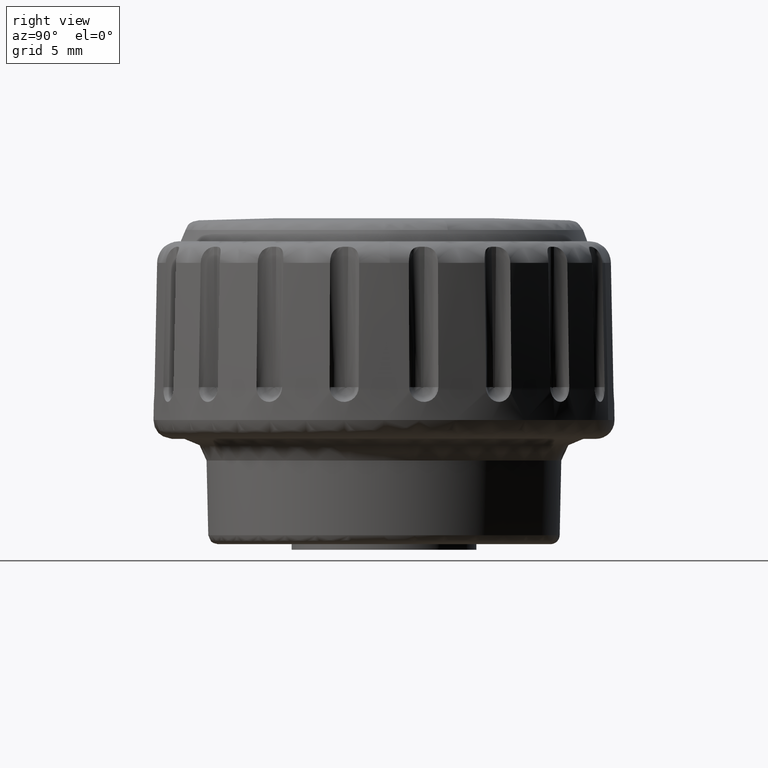
[diagram: clean part render]
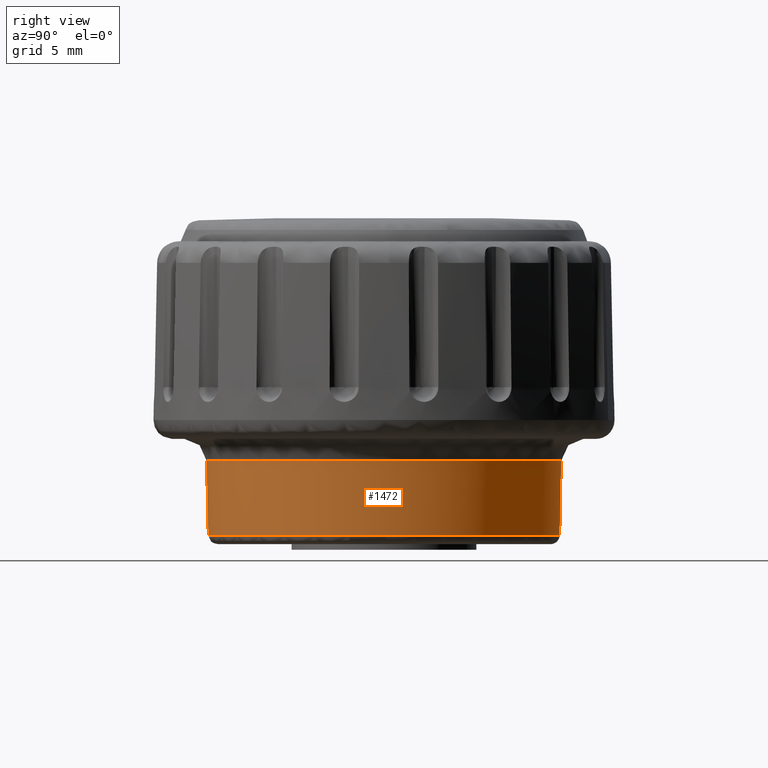
[diagram: same view with one face highlighted and labeled with its STEP entity id]
A machine part, right view. The second image highlights one B-rep face of the part: STEP entity #1472.
In plain terms, the highlighted face is a freeform B-spline surface patch.
Its self-contained STEP definition (entity closure, byte-faithful):
#1300=CARTESIAN_POINT('',(-7.191511458358566,-6.222806550559621,0.684042368976148));
#1301=CARTESIAN_POINT('',(-6.831050229601700,-6.639380814251923,0.684042368976147));
#1302=CARTESIAN_POINT('',(-6.424900469432008,-7.011548500815112,0.684042368976147));
#1303=CARTESIAN_POINT('',(0.586648031383104,-13.436448970247119,0.684042368976148));
#1304=CARTESIAN_POINT('',(7.011548500815112,-6.424900469432008,0.684042368976147));
#1305=CARTESIAN_POINT('',(13.436448970247119,0.586648031383104,0.684042368976148));
#1306=CARTESIAN_POINT('',(6.424900469432008,7.011548500815112,0.684042368976147));
#1307=CARTESIAN_POINT('',(-0.586648031383104,13.436448970247119,0.684042368976148));
#1308=CARTESIAN_POINT('',(-7.011548500815112,6.424900469432008,0.684042368976147));
#1309=CARTESIAN_POINT('',(-7.275691936813949,-6.295647821243068,4.935136551842401));
#1310=CARTESIAN_POINT('',(-6.911011317060201,-6.717098308943754,4.935136551842399));
#1311=CARTESIAN_POINT('',(-6.500107357257568,-7.093622416838109,4.935136551842401));
#1312=CARTESIAN_POINT('',(0.593515059580541,-13.593729774095678,4.935136551842402));
#1313=CARTESIAN_POINT('',(7.093622416838109,-6.500107357257568,4.935136551842401));
#1314=CARTESIAN_POINT('',(13.593729774095678,0.593515059580541,4.935136551842402));
#1315=CARTESIAN_POINT('',(6.500107357257568,7.093622416838109,4.935136551842401));
#1316=CARTESIAN_POINT('',(-0.593515059580541,13.593729774095678,4.935136551842402));
#1317=CARTESIAN_POINT('',(-7.093622416838109,6.500107357257568,4.935136551842401));
#1325=(BOUNDED_SURFACE()B_SPLINE_SURFACE(2,1,((#1300,#1309),(#1301,#1310),(#1302,#1311),(#1303,#1312),(#1304,#1313),(#1305,#1314),(#1306,#1315),(#1307,#1316),(#1308,#1317)),.UNSPECIFIED.,.F.,.F.,.U.)B_SPLINE_SURFACE_WITH_KNOTS((3,2,2,2,3),(2,2),(0.0,1.275297406697254,17.216514990412939,33.157732574128630,49.098950157844307),(0.0,4.252551464152675),.UNSPECIFIED.)GEOMETRIC_REPRESENTATION_ITEM()RATIONAL_B_SPLINE_SURFACE(((0.956886118190660,0.956886118190660),(0.976568542494924,0.976568542494924),(1.0,1.0),(0.707106781186548,0.707106781186548),(1.0,1.0),(0.707106781186548,0.707106781186548),(1.0,1.0),(0.707106781186548,0.707106781186548),(1.0,1.0)))REPRESENTATION_ITEM('')SURFACE());
#1326=CARTESIAN_POINT('',(-0.059625964930829,-9.512492940038833,0.785198911718550));
#1327=VERTEX_POINT('',#1326);
#1328=CARTESIAN_POINT('',(-7.193367472963777,-6.224413039309077,0.785853330086507));
#1329=VERTEX_POINT('',#1328);
#1330=CARTESIAN_POINT('',(-0.059625964930829,-9.512492940038833,0.785198911718550));
#1331=CARTESIAN_POINT('',(-0.460264884254677,-9.509984211382813,0.785201626485337));
#1332=CARTESIAN_POINT('',(-1.387699668706175,-9.445476895055215,0.785218879819400));
#1333=CARTESIAN_POINT('',(-2.648511201059082,-9.169147427357645,0.785277584184269));
#1334=CARTESIAN_POINT('',(-3.717722599164644,-8.772223993951354,0.785357749223585));
#1335=CARTESIAN_POINT('',(-4.591063152785956,-8.348367751159923,0.785441849012096));
#1336=CARTESIAN_POINT('',(-5.456253563246339,-7.819975689580712,0.785545437187671));
#1337=CARTESIAN_POINT('',(-6.368575047391950,-7.100171061328346,0.785685057871500));
#1338=CARTESIAN_POINT('',(-6.931224739739521,-6.527398216990511,0.785795243221216));
#1339=CARTESIAN_POINT('',(-7.193367472963777,-6.224413039309077,0.785853330086507));
#1340=B_SPLINE_CURVE_WITH_KNOTS('',3,(#1330,#1331,#1332,#1333,#1334,#1335,#1336,#1337,#1338,#1339),.UNSPECIFIED.,.F.,.U.,(4,1,1,1,1,1,1,4),(3.205912E-009,1.201944559459703,2.783456783884185,3.858886168020712,4.618002536913346,5.693430268737970,6.895380296366600,8.097324855641540),.UNSPECIFIED.);
#1341=EDGE_CURVE('',#1327,#1329,#1340,.T.);
#1342=ORIENTED_EDGE('',*,*,#1341,.F.);
#1343=CARTESIAN_POINT('',(9.512749480641890,0.0,0.786914354733086));
#1344=VERTEX_POINT('',#1343);
#1345=CARTESIAN_POINT('',(9.512749480641890,0.0,0.786914354733086));
#1346=CARTESIAN_POINT('',(9.512819356691342,-0.566495738288602,0.786808492930515));
#1347=CARTESIAN_POINT('',(9.434035060368133,-1.445518531632528,0.786644741102951));
#1348=CARTESIAN_POINT('',(9.168865782860930,-2.588649367683157,0.786432845623217));
#1349=CARTESIAN_POINT('',(8.839510397869610,-3.571349919994047,0.786251346646701));
#1350=CARTESIAN_POINT('',(8.350227542266650,-4.617786385150161,0.786058975849895));
#1351=CARTESIAN_POINT('',(7.617905414706210,-5.753042944604085,0.785851585453178));
#1352=CARTESIAN_POINT('',(6.819046109050118,-6.668111016159829,0.785685773873355));
#1353=CARTESIAN_POINT('',(5.886352863502070,-7.502624593072447,0.785535884648558));
#1354=CARTESIAN_POINT('',(4.938948991205663,-8.164446262743294,0.785418361977294));
#1355=CARTESIAN_POINT('',(3.963889172062169,-8.664919911670710,0.785331170086440));
#1356=CARTESIAN_POINT('',(2.981923779119132,-9.052190551180138,0.785265177343586));
#1357=CARTESIAN_POINT('',(1.699111149108512,-9.408525662765980,0.785206919190615));
#1358=CARTESIAN_POINT('',(0.604534171528638,-9.516796259703970,0.785193794609550));
#1359=CARTESIAN_POINT('',(-0.059625964930829,-9.512492940038833,0.785198911718550));
#1360=B_SPLINE_CURVE_WITH_KNOTS('',3,(#1345,#1346,#1347,#1348,#1349,#1350,#1351,#1352,#1353,#1354,#1355,#1356,#1357,#1358,#1359),.UNSPECIFIED.,.F.,.U.,(4,1,1,1,1,1,1,1,1,1,1,1,4),(9.308470E-009,1.699477387880188,2.637126736254093,3.516172429803399,4.805439101153681,6.094706990039841,7.559766335333905,8.438807755779683,9.845283802485934,11.017341224741971,11.720577999682151,13.009841314983349,15.002338002208321),.UNSPECIFIED.);
#1361=EDGE_CURVE('',#1344,#1327,#1360,.T.);
#1362=ORIENTED_EDGE('',*,*,#1361,.F.);
#1363=CARTESIAN_POINT('',(0.239056302376872,9.509745252401981,0.786914354403101));
#1364=VERTEX_POINT('',#1363);
#1365=CARTESIAN_POINT('',(0.239056302376872,9.509745252401981,0.786914354403101));
#1366=CARTESIAN_POINT('',(0.640976980699121,9.499654650902201,0.786914354417403));
#1367=CARTESIAN_POINT('',(1.367097186105873,9.435174937916207,0.786914354443241));
#1368=CARTESIAN_POINT('',(2.625093263527645,9.175965494274154,0.786914354488000));
#1369=CARTESIAN_POINT('',(3.910543592318781,8.718196780633225,0.786914354533750));
#1370=CARTESIAN_POINT('',(5.120263833032566,8.049185594001841,0.786914354576778));
#1371=CARTESIAN_POINT('',(6.231721440874180,7.230392016520193,0.786914354616344));
#1372=CARTESIAN_POINT('',(7.245944766641265,6.233425841873671,0.786914354652421));
#1373=CARTESIAN_POINT('',(8.099975704650062,5.049423121271057,0.786914354682825));
#1374=CARTESIAN_POINT('',(8.678995476847939,3.945325926074511,0.786914354703395));
#1375=CARTESIAN_POINT('',(9.100091606983852,2.854175282860362,0.786914354718419));
#1376=CARTESIAN_POINT('',(9.425348352086321,1.550747346521660,0.786914354729968));
#1377=CARTESIAN_POINT('',(9.512791668018808,0.555210507673900,0.786914354733086));
#1378=CARTESIAN_POINT('',(9.512749480641890,0.0,0.786914354733086));
#1379=B_SPLINE_CURVE_WITH_KNOTS('',3,(#1365,#1366,#1367,#1368,#1369,#1370,#1371,#1372,#1373,#1374,#1375,#1376,#1377,#1378),.UNSPECIFIED.,.F.,.U.,(4,1,1,1,1,1,1,1,1,1,1,4),(9.719509E-009,1.206142807349549,2.182552242770772,3.848190469151303,5.284086636473692,6.317930959253426,7.983550738357033,9.534317680929400,10.683035164054161,11.716879108418460,13.037903581515939,14.703532804195021),.UNSPECIFIED.);
#1380=EDGE_CURVE('',#1364,#1344,#1379,.T.);
#1381=ORIENTED_EDGE('',*,*,#1380,.F.);
#1382=CARTESIAN_POINT('',(-7.013426588206967,6.426621146089087,0.786989000532859));
#1383=VERTEX_POINT('',#1382);
#1384=CARTESIAN_POINT('',(-7.013426588206967,6.426621146089087,0.786989000532859));
#1385=CARTESIAN_POINT('',(-6.613218575487259,6.863510910944570,0.786982890182749));
#1386=CARTESIAN_POINT('',(-5.951370402768760,7.462401248440672,0.786973707898885));
#1387=CARTESIAN_POINT('',(-4.811483350161494,8.234749175250524,0.786959827569562));
#1388=CARTESIAN_POINT('',(-3.601801169650186,8.852372264205146,0.786946605302935));
#1389=CARTESIAN_POINT('',(-2.203579931677132,9.292875596937009,0.786933362902442));
#1390=CARTESIAN_POINT('',(-0.883149781773938,9.494686270990242,0.786922456044639));
#1391=CARTESIAN_POINT('',(-0.120547821690389,9.518794916840372,0.786916846952775));
#1392=CARTESIAN_POINT('',(0.239056302376872,9.509745252401981,0.786914354403101));
#1393=B_SPLINE_CURVE_WITH_KNOTS('',3,(#1384,#1385,#1386,#1387,#1388,#1389,#1390,#1391,#1392),.UNSPECIFIED.,.F.,.U.,(4,1,1,1,1,1,4),(1.737630E-009,1.777436907919989,2.666156857596556,4.126192574627476,5.840151688558562,7.046274156011323,8.125429562971135),.UNSPECIFIED.);
#1394=EDGE_CURVE('',#1383,#1364,#1393,.T.);
#1395=ORIENTED_EDGE('',*,*,#1394,.F.);
#1396=CARTESIAN_POINT('',(-7.091620016946317,6.498272501712165,4.831420556919911));
#1397=VERTEX_POINT('',#1396);
#1398=CARTESIAN_POINT('',(-7.013426588206967,6.426621146089087,0.786989000532859));
#1399=CARTESIAN_POINT('',(-7.091620016946317,6.498272501712165,4.831420556919911));
#1400=QUASI_UNIFORM_CURVE('',1,(#1398,#1399),.UNSPECIFIED.,.F.,.U.);
#1401=EDGE_CURVE('',#1383,#1397,#1400,.T.);
#1402=ORIENTED_EDGE('',*,*,#1401,.T.);
#1403=CARTESIAN_POINT('',(0.670740437602922,9.595245044403225,4.831421001800820));
#1404=VERTEX_POINT('',#1403);
#1405=CARTESIAN_POINT('',(-7.091620016946317,6.498272501712165,4.831420556919911));
#1406=CARTESIAN_POINT('',(-6.757015564982577,6.863479604386380,4.831420573719243));
#1407=CARTESIAN_POINT('',(-6.130165259743532,7.449467416923433,4.831420606198816));
#1408=CARTESIAN_POINT('',(-5.101217936245286,8.181520345119951,4.831420661871003));
#1409=CARTESIAN_POINT('',(-4.110797482058933,8.721297754972481,4.831420717150437));
#1410=CARTESIAN_POINT('',(-2.958859848073892,9.180898165850465,4.831420783170876));
#1411=CARTESIAN_POINT('',(-1.821350774396432,9.471009974842064,4.831420850044522));
#1412=CARTESIAN_POINT('',(-0.568386306073973,9.626286453879311,4.831420925391594));
#1413=CARTESIAN_POINT('',(0.221553780546700,9.626666665905816,4.831420973895301));
#1414=CARTESIAN_POINT('',(0.670740437602922,9.595245044403225,4.831421001800820));
#1415=B_SPLINE_CURVE_WITH_KNOTS('',3,(#1405,#1406,#1407,#1408,#1409,#1410,#1411,#1412,#1413,#1414),.UNSPECIFIED.,.F.,.U.,(4,1,1,1,1,1,1,4),(1.092673E-009,1.485940040450902,2.566626372317892,3.782397828070034,4.863075657889571,6.281477043662079,7.294621377522667,8.645474102517301),.UNSPECIFIED.);
#1416=EDGE_CURVE('',#1397,#1404,#1415,.T.);
#1417=ORIENTED_EDGE('',*,*,#1416,.T.);
#1418=CARTESIAN_POINT('',(9.618660000000000,0.0,4.831421000000000));
#1419=VERTEX_POINT('',#1418);
#1420=CARTESIAN_POINT('',(0.670740437602922,9.595245044403225,4.831421001800820));
#1421=CARTESIAN_POINT('',(1.045805958399479,9.569034443543581,4.831421001725335));
#1422=CARTESIAN_POINT('',(1.848887053989758,9.465326627090979,4.831421001563706));
#1423=CARTESIAN_POINT('',(2.979455933900877,9.171243743164439,4.831421001336207));
#1424=CARTESIAN_POINT('',(4.029558379948461,8.754709887128628,4.831421001124836));
#1425=CARTESIAN_POINT('',(4.961663349022602,8.262213856876899,4.831421000937230));
#1426=CARTESIAN_POINT('',(5.897503849423385,7.629431411315375,4.831421000748923));
#1427=CARTESIAN_POINT('',(6.919505605717947,6.737291747397484,4.831421000543189));
#1428=CARTESIAN_POINT('',(7.780371404268805,5.710536566830192,4.831421000369938));
#1429=CARTESIAN_POINT('',(8.407303476030601,4.703787587180853,4.831421000243848));
#1430=CARTESIAN_POINT('',(8.841949154281346,3.827122936837634,4.831421000156103));
#1431=CARTESIAN_POINT('',(9.200683214714726,2.875788973405379,4.831421000084228));
#1432=CARTESIAN_POINT('',(9.526641355693966,1.579097299233134,4.831421000018490));
#1433=CARTESIAN_POINT('',(9.618725968436637,0.601574980294959,4.831420999999909));
#1434=CARTESIAN_POINT('',(9.618660000000000,0.0,4.831421000000000));
#1435=B_SPLINE_CURVE_WITH_KNOTS('',3,(#1420,#1421,#1422,#1423,#1424,#1425,#1426,#1427,#1428,#1429,#1430,#1431,#1432,#1433,#1434),.UNSPECIFIED.,.F.,.U.,(4,1,1,1,1,1,1,1,1,1,1,1,4),(0.000000010110277,1.127942370841614,2.425077019247580,3.496628066895172,4.511779519579937,5.583331887504226,6.880464401207290,8.572371668960498,9.587528965344758,10.433487439631140,11.505035665320710,12.632980435941990,14.437691242315401),.UNSPECIFIED.);
#1436=EDGE_CURVE('',#1404,#1419,#1435,.T.);
#1437=ORIENTED_EDGE('',*,*,#1436,.T.);
#1438=CARTESIAN_POINT('',(-7.273642370763934,-6.293872907948378,4.831355192598924));
#1439=VERTEX_POINT('',#1438);
#1440=CARTESIAN_POINT('',(9.618660000000000,0.0,4.831421000000000));
#1441=CARTESIAN_POINT('',(9.618585175985519,-1.273479216021318,4.828559259481862));
#1442=CARTESIAN_POINT('',(9.365836875833653,-2.533759117664491,4.828323380240617));
#1443=CARTESIAN_POINT('',(8.874859474312354,-3.708787934671295,4.830642078091024));
#1444=CARTESIAN_POINT('',(8.384312698855005,-4.882786158349514,4.832958742259789));
#1445=CARTESIAN_POINT('',(7.665170971253200,-5.948631315852707,4.828973683297205));
#1446=CARTESIAN_POINT('',(6.758546672422966,-6.844000862925405,4.830776181858838));
#1447=CARTESIAN_POINT('',(5.854592210272583,-7.736733716428472,4.832573372403930));
#1448=CARTESIAN_POINT('',(4.782191983416616,-8.441982809112961,4.829398101083354));
#1449=CARTESIAN_POINT('',(3.602478168158858,-8.918533145901028,4.830374375234923));
#1450=CARTESIAN_POINT('',(2.420799826558151,-9.395877061333554,4.831352275133570));
#1451=CARTESIAN_POINT('',(1.155355101497299,-9.633863848939134,4.828887172164369));
#1452=CARTESIAN_POINT('',(-0.120865028065736,-9.617889860101126,4.831121459628015));
#1453=CARTESIAN_POINT('',(-1.384099583944593,-9.601940511515743,4.828525076931257));
#1454=CARTESIAN_POINT('',(-2.631246876525932,-9.337536142235074,4.828381803120412));
#1455=CARTESIAN_POINT('',(-3.792272233710125,-8.839502916646168,4.830649363151116));
#1456=CARTESIAN_POINT('',(-4.952270592221445,-8.341910232220780,4.832914917384851));
#1457=CARTESIAN_POINT('',(-6.003799969683215,-7.620333153178185,4.829012347814548));
#1458=CARTESIAN_POINT('',(-6.886338763526675,-6.715394272243517,4.830784239157456));
#1459=CARTESIAN_POINT('',(-7.019931240804819,-6.578411028296943,4.831052455530061));
#1460=CARTESIAN_POINT('',(-7.149065453951121,-6.437828251194211,4.831237979482637));
#1461=CARTESIAN_POINT('',(-7.273642370763934,-6.293872907948378,4.831355192598924));
#1462=B_SPLINE_CURVE_WITH_KNOTS('',3,(#1440,#1441,#1442,#1443,#1444,#1445,#1446,#1447,#1448,#1449,#1450,#1451,#1452,#1453,#1454,#1455,#1456,#1457,#1458,#1459,#1460,#1461),.UNSPECIFIED.,.F.,.U.,(4,3,3,3,3,3,3,4),(0.0,3.820447609684460,7.637544384255977,11.443400532481560,15.255594408183050,19.029006474195899,22.799080724062001,23.369767884870811),.UNSPECIFIED.);
#1463=EDGE_CURVE('',#1419,#1439,#1462,.T.);
#1464=ORIENTED_EDGE('',*,*,#1463,.T.);
#1465=CARTESIAN_POINT('',(-7.193367472963777,-6.224413039309077,0.785853330086507));
#1466=CARTESIAN_POINT('',(-7.273642370763934,-6.293872907948378,4.831355192598924));
#1467=QUASI_UNIFORM_CURVE('',1,(#1465,#1466),.UNSPECIFIED.,.F.,.U.);
#1468=EDGE_CURVE('',#1329,#1439,#1467,.T.);
#1469=ORIENTED_EDGE('',*,*,#1468,.F.);
#1470=EDGE_LOOP('',(#1342,#1362,#1381,#1395,#1402,#1417,#1437,#1464,#1469));
#1471=FACE_OUTER_BOUND('',#1470,.T.);
#1472=ADVANCED_FACE('',(#1471),#1325,.T.);